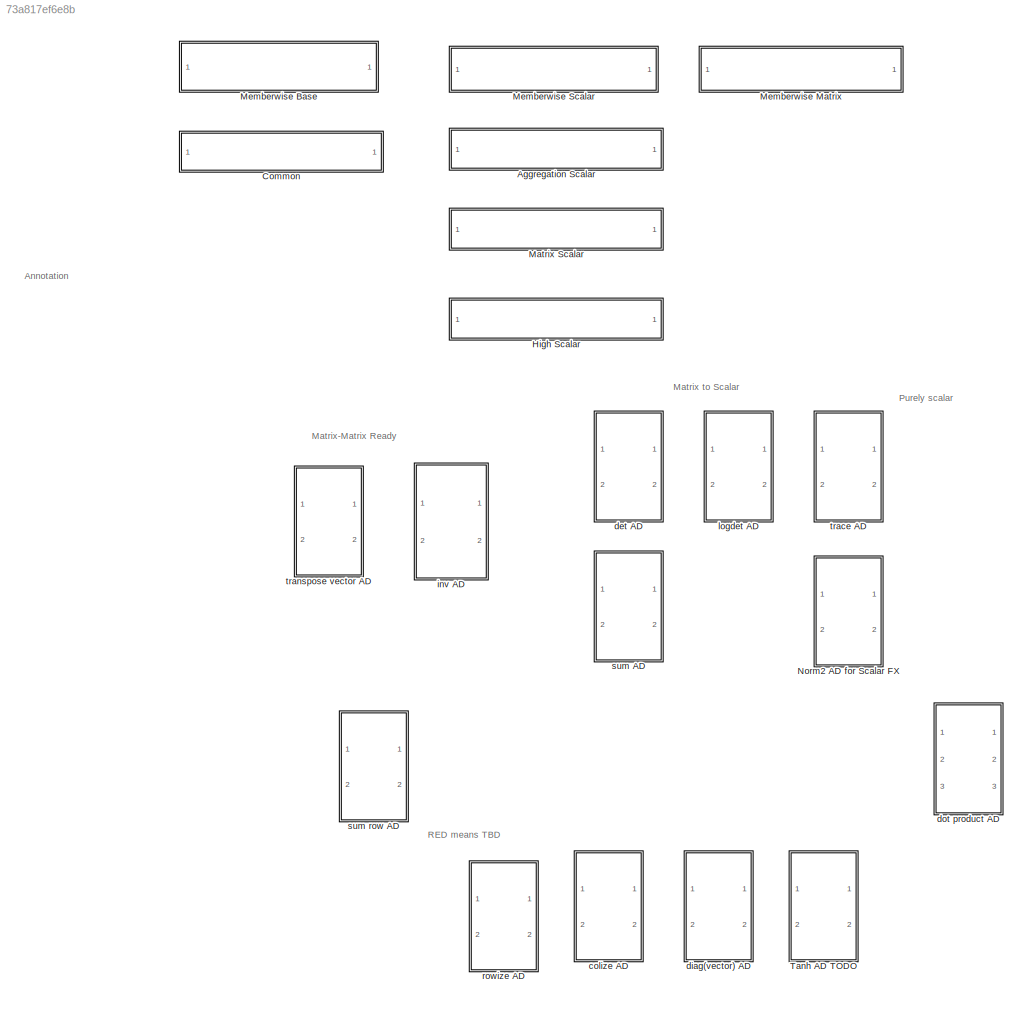
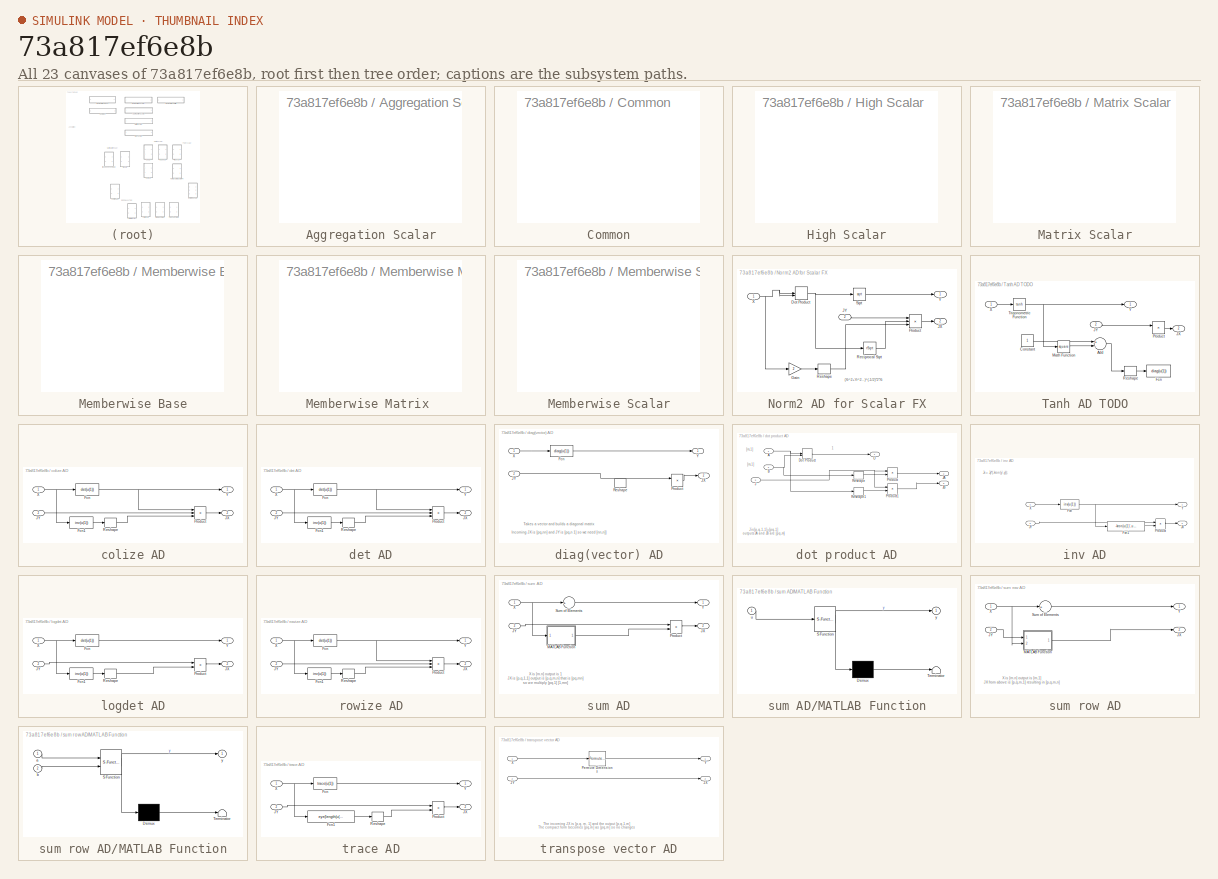
[diagram: thumbnail index - all 23 canvases of the model, root first then tree order]
MODEL slx_73a817ef6e8b
KIND library
CONFIG AbsTol = auto
CONFIG EnableMultiTasking = on
CONFIG FixedStep = auto
CONFIG MaxStep = auto
CONFIG MinStep = auto
CONFIG RelTol = 1e-3
CONFIG SampleTimeConstraint = Unconstrained
CONFIG Solver = ode45
CONFIG SolverName = ode45
CONFIG StartTime = 0.0
CONFIG StopTime = 10.0
BLOCK [SubSystem] Aggregation Scalar
  OpenFcn = ad_agg_scalar
  Ports = []
  RequestExecContextInheritance = off
  Variant = off
BLOCK [SubSystem] Common
  OpenFcn = ad_common
  Ports = []
  RequestExecContextInheritance = off
  Variant = off
BLOCK [SubSystem] High Scalar
  OpenFcn = ad_high_scalar
  Ports = []
  RequestExecContextInheritance = off
  Variant = off
BLOCK [SubSystem] Matrix Scalar
  OpenFcn = ad_mtx_scalar
  Ports = []
  RequestExecContextInheritance = off
  Variant = off
BLOCK [SubSystem] Memberwise Base
  OpenFcn = ad_mem_base
  Ports = []
  RequestExecContextInheritance = off
  Variant = off
BLOCK [SubSystem] Memberwise Matrix 
  OpenFcn = ad_mem_any
  Ports = []
  RequestExecContextInheritance = off
  Variant = off
BLOCK [SubSystem] Memberwise Scalar
  OpenFcn = ad_mem_scalar
  Ports = []
  RequestExecContextInheritance = off
  Variant = off
BLOCK [SubSystem] Norm2 AD for Scalar FX
  Ports = [2, 2]
  RequestExecContextInheritance = off
  Variant = off
BLOCK [DotProduct] Norm2 AD for Scalar FX/Dot Product
  OutDataTypeStr = Inherit: Inherit via internal rule
BLOCK [Gain] Norm2 AD for Scalar FX/Gain
  Gain = 2
  OutDataTypeStr = Inherit: Inherit via internal rule
  ParamDataTypeStr = Inherit: Inherit via internal rule
  SaturateOnIntegerOverflow = off
BLOCK [Outport] Norm2 AD for Scalar FX/JX
  IconDisplay = Port number
  Port = 2
BLOCK [Inport] Norm2 AD for Scalar FX/JY
  IconDisplay = Port number
  Port = 2
BLOCK [Product] Norm2 AD for Scalar FX/Product
  InputSameDT = off
  Inputs = 3
  OutDataTypeStr = Inherit: Inherit via internal rule
  Ports = [3, 1]
  RndMeth = Floor
  SaturateOnIntegerOverflow = off
BLOCK [Sqrt] Norm2 AD for Scalar FX/Reciprocal Sqrt
  Operator = rSqrt
BLOCK [Reshape] Norm2 AD for Scalar FX/Reshape
  OutputDimensionality = Row vector (2-D)
  Ports = [1, 1]
BLOCK [Sqrt] Norm2 AD for Scalar FX/Sqrt
BLOCK [Inport] Norm2 AD for Scalar FX/X
  IconDisplay = Port number
BLOCK [Outport] Norm2 AD for Scalar FX/Y
  IconDisplay = Port number
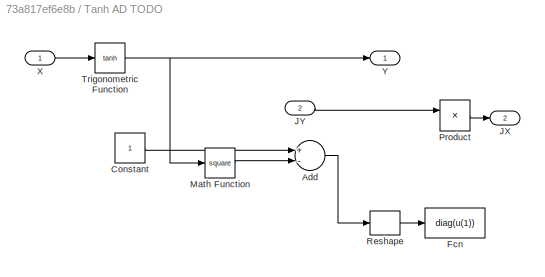
BLOCK [SubSystem] Tanh AD TODO
  Ports = [2, 2]
  RequestExecContextInheritance = off
  Variant = off
BLOCK [Sum] Tanh AD TODO/Add
  InputSameDT = off
  Inputs = +-
  OutDataTypeStr = Inherit: Inherit via internal rule
  Ports = [2, 1]
  SaturateOnIntegerOverflow = off
BLOCK [Constant] Tanh AD TODO/Constant
BLOCK [Fcn] Tanh AD TODO/Fcn
  Expr = diag(u(1))
BLOCK [Outport] Tanh AD TODO/JX
  IconDisplay = Port number
  Port = 2
BLOCK [Inport] Tanh AD TODO/JY
  IconDisplay = Port number
  Port = 2
BLOCK [Math] Tanh AD TODO/Math Function
  Operator = square
  Ports = [1, 1]
BLOCK [Product] Tanh AD TODO/Product
  InputSameDT = off
  OutDataTypeStr = Inherit: Inherit via internal rule
  Ports = [2, 1]
  RndMeth = Floor
  SaturateOnIntegerOverflow = off
BLOCK [Reshape] Tanh AD TODO/Reshape
  OutputDimensionality = Column vector (2-D)
  Ports = [1, 1]
BLOCK [Trigonometry] Tanh AD TODO/Trigonometric Function
  Operator = tanh
  Ports = [1, 1]
BLOCK [Inport] Tanh AD TODO/X
  IconDisplay = Port number
BLOCK [Outport] Tanh AD TODO/Y
  IconDisplay = Port number
BLOCK [SubSystem] colize AD
  Ports = [2, 2]
  RequestExecContextInheritance = off
  Variant = off
BLOCK [Fcn] colize AD/Fcn
  Expr = det(u(1))
BLOCK [Fcn] colize AD/Fcn1
  Expr = inv(u(1))
BLOCK [Outport] colize AD/JX
  IconDisplay = Port number
  Port = 2
BLOCK [Inport] colize AD/JY
  IconDisplay = Port number
  Port = 2
BLOCK [Product] colize AD/Product
  InputSameDT = off
  Inputs = 3
  OutDataTypeStr = Inherit: Inherit via internal rule
  Ports = [3, 1]
  RndMeth = Floor
  SaturateOnIntegerOverflow = off
BLOCK [Reshape] colize AD/Reshape
  OutputDimensionality = Row vector (2-D)
  Ports = [1, 1]
BLOCK [Inport] colize AD/X
  IconDisplay = Port number
BLOCK [Outport] colize AD/Y
  IconDisplay = Port number
BLOCK [SubSystem] det AD
  Ports = [2, 2]
  RequestExecContextInheritance = off
  Variant = off
BLOCK [Fcn] det AD/Fcn
  Expr = det(u(1))
BLOCK [Fcn] det AD/Fcn1
  Expr = inv(u(1))
BLOCK [Outport] det AD/JX
  IconDisplay = Port number
  Port = 2
BLOCK [Inport] det AD/JY
  IconDisplay = Port number
  Port = 2
BLOCK [Product] det AD/Product
  InputSameDT = off
  Inputs = 3
  OutDataTypeStr = Inherit: Inherit via internal rule
  Ports = [3, 1]
  RndMeth = Floor
  SaturateOnIntegerOverflow = off
BLOCK [Reshape] det AD/Reshape
  OutputDimensionality = Row vector (2-D)
  Ports = [1, 1]
BLOCK [Inport] det AD/X
  IconDisplay = Port number
BLOCK [Outport] det AD/Y
  IconDisplay = Port number
BLOCK [SubSystem] diag(vector) AD
  Ports = [2, 2]
  RequestExecContextInheritance = off
  Variant = off
BLOCK [Fcn] diag(vector) AD/Fcn
  Expr = diag(u(1))
BLOCK [Outport] diag(vector) AD/JX
  IconDisplay = Port number
  Port = 2
BLOCK [Inport] diag(vector) AD/JY
  IconDisplay = Port number
  Port = 2
BLOCK [Product] diag(vector) AD/Product
  InputSameDT = off
  OutDataTypeStr = Inherit: Inherit via internal rule
  Ports = [2, 1]
  RndMeth = Floor
  SaturateOnIntegerOverflow = off
BLOCK [Reshape] diag(vector) AD/Reshape
  OutputDimensionality = Row vector (2-D)
  Ports = [1, 1]
BLOCK [Inport] diag(vector) AD/X
  IconDisplay = Port number
BLOCK [Outport] diag(vector) AD/Y
  IconDisplay = Port number
BLOCK [SubSystem] dot product AD
  Ports = [3, 3]
  RequestExecContextInheritance = off
  Variant = off
BLOCK [Inport] dot product AD/A
  IconDisplay = Port number
BLOCK [Inport] dot product AD/B
  IconDisplay = Port number
  Port = 2
BLOCK [DotProduct] dot product AD/Dot Product
  OutDataTypeStr = Inherit: Inherit via internal rule
BLOCK [Inport] dot product AD/J
  IconDisplay = Port number
  Port = 3
BLOCK [Outport] dot product AD/JA
  IconDisplay = Port number
  Port = 2
BLOCK [Outport] dot product AD/JB
  IconDisplay = Port number
  Port = 3
BLOCK [Outport] dot product AD/O
  IconDisplay = Port number
BLOCK [Product] dot product AD/Product
  InputSameDT = off
  OutDataTypeStr = Inherit: Inherit via internal rule
  Ports = [2, 1]
  RndMeth = Floor
  SaturateOnIntegerOverflow = off
BLOCK [Product] dot product AD/Product1
  InputSameDT = off
  OutDataTypeStr = Inherit: Inherit via internal rule
  Ports = [2, 1]
  RndMeth = Floor
  SaturateOnIntegerOverflow = off
BLOCK [Reshape] dot product AD/Reshape
  OutputDimensionality = Row vector (2-D)
  Ports = [1, 1]
BLOCK [Reshape] dot product AD/Reshape1
  OutputDimensionality = Row vector (2-D)
  Ports = [1, 1]
BLOCK [SubSystem] inv AD
  Ports = [2, 2]
  RequestExecContextInheritance = off
  Variant = off
BLOCK [Fcn] inv AD/Fcn
  Expr = inv(u(1))
BLOCK [Fcn] inv AD/Fcn1
  Expr = -kron(u(1)',u(1))
BLOCK [Outport] inv AD/JX
  IconDisplay = Port number
  Port = 2
BLOCK [Inport] inv AD/JY
  IconDisplay = Port number
  Port = 2
BLOCK [Product] inv AD/Product
  InputSameDT = off
  OutDataTypeStr = Inherit: Inherit via internal rule
  Ports = [2, 1]
  RndMeth = Floor
  SaturateOnIntegerOverflow = off
BLOCK [Inport] inv AD/X
  IconDisplay = Port number
BLOCK [Outport] inv AD/Y
  IconDisplay = Port number
BLOCK [SubSystem] logdet AD
  Ports = [2, 2]
  RequestExecContextInheritance = off
  Variant = off
BLOCK [Fcn] logdet AD/Fcn
  Expr = det(u(1))
BLOCK [Fcn] logdet AD/Fcn1
  Expr = inv(u(1))
BLOCK [Outport] logdet AD/JX
  IconDisplay = Port number
  Port = 2
BLOCK [Inport] logdet AD/JY
  IconDisplay = Port number
  Port = 2
BLOCK [Product] logdet AD/Product
  InputSameDT = off
  OutDataTypeStr = Inherit: Inherit via internal rule
  Ports = [2, 1]
  RndMeth = Floor
  SaturateOnIntegerOverflow = off
BLOCK [Reshape] logdet AD/Reshape
  OutputDimensionality = Row vector (2-D)
  Ports = [1, 1]
BLOCK [Inport] logdet AD/X
  IconDisplay = Port number
BLOCK [Outport] logdet AD/Y
  IconDisplay = Port number
BLOCK [SubSystem] rowize AD
  Ports = [2, 2]
  RequestExecContextInheritance = off
  Variant = off
BLOCK [Fcn] rowize AD/Fcn
  Expr = det(u(1))
BLOCK [Fcn] rowize AD/Fcn1
  Expr = inv(u(1))
BLOCK [Outport] rowize AD/JX
  IconDisplay = Port number
  Port = 2
BLOCK [Inport] rowize AD/JY
  IconDisplay = Port number
  Port = 2
BLOCK [Product] rowize AD/Product
  InputSameDT = off
  Inputs = 3
  OutDataTypeStr = Inherit: Inherit via internal rule
  Ports = [3, 1]
  RndMeth = Floor
  SaturateOnIntegerOverflow = off
BLOCK [Reshape] rowize AD/Reshape
  OutputDimensionality = Row vector (2-D)
  Ports = [1, 1]
BLOCK [Inport] rowize AD/X
  IconDisplay = Port number
BLOCK [Outport] rowize AD/Y
  IconDisplay = Port number
BLOCK [SubSystem] sum AD
  Ports = [2, 2]
  RequestExecContextInheritance = off
  Variant = off
BLOCK [Outport] sum AD/JX
  IconDisplay = Port number
  Port = 2
BLOCK [Inport] sum AD/JY
  IconDisplay = Port number
  Port = 2
BLOCK [SubSystem] sum AD/MATLAB Function
  ErrorFcn = Stateflow.Translate.translate
  PermitHierarchicalResolution = ExplicitOnly
  Ports = [1, 1]
  RequestExecContextInheritance = off
  SFBlockType = MATLAB Function
  TreatAsAtomicUnit = on
  Variant = off
BLOCK [Demux] sum AD/MATLAB Function/ Demux 
  Outputs = 1
  Ports = [1, 1]
BLOCK [S-Function] sum AD/MATLAB Function/ SFunction 
  EnableBusSupport = off
  FunctionName = sf_sfun
  PortCounts = [1 2]
  Ports = [1, 2]
  SFcnIsStateOwnerBlock = off
  SFunctionDeploymentMode = off
  Tag = Stateflow S-Function autodiff 5
BLOCK [Terminator] sum AD/MATLAB Function/ Terminator 
BLOCK [Inport] sum AD/MATLAB Function/u
  IconDisplay = Port number
BLOCK [Outport] sum AD/MATLAB Function/y
  IconDisplay = Port number
BLOCK [Product] sum AD/Product
  InputSameDT = off
  OutDataTypeStr = Inherit: Inherit via internal rule
  Ports = [2, 1]
  RndMeth = Floor
  SaturateOnIntegerOverflow = off
BLOCK [Sum] sum AD/Sum of Elements
  InputSameDT = off
  Inputs = +
  OutDataTypeStr = Inherit: Inherit via internal rule
  Ports = [1, 1]
  SaturateOnIntegerOverflow = off
BLOCK [Inport] sum AD/X
  IconDisplay = Port number
BLOCK [Outport] sum AD/Y
  IconDisplay = Port number
BLOCK [SubSystem] sum row AD
  Ports = [2, 2]
  RequestExecContextInheritance = off
  Variant = off
BLOCK [Outport] sum row AD/JX
  IconDisplay = Port number
  Port = 2
BLOCK [Inport] sum row AD/JY
  IconDisplay = Port number
  Port = 2
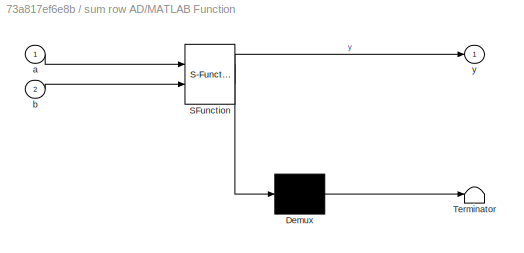
BLOCK [SubSystem] sum row AD/MATLAB Function
  ErrorFcn = Stateflow.Translate.translate
  PermitHierarchicalResolution = ExplicitOnly
  Ports = [2, 1]
  RequestExecContextInheritance = off
  SFBlockType = MATLAB Function
  TreatAsAtomicUnit = on
  Variant = off
BLOCK [Demux] sum row AD/MATLAB Function/ Demux 
  Outputs = 1
  Ports = [1, 1]
BLOCK [S-Function] sum row AD/MATLAB Function/ SFunction 
  EnableBusSupport = off
  FunctionName = sf_sfun
  PortCounts = [2 2]
  Ports = [2, 2]
  SFcnIsStateOwnerBlock = off
  SFunctionDeploymentMode = off
  Tag = Stateflow S-Function autodiff 9
BLOCK [Terminator] sum row AD/MATLAB Function/ Terminator 
BLOCK [Inport] sum row AD/MATLAB Function/a
  IconDisplay = Port number
BLOCK [Inport] sum row AD/MATLAB Function/b
  IconDisplay = Port number
  Port = 2
BLOCK [Outport] sum row AD/MATLAB Function/y
  IconDisplay = Port number
BLOCK [Sum] sum row AD/Sum of Elements
  CollapseDim = 2
  CollapseMode = Specified dimension
  InputSameDT = off
  Inputs = +
  OutDataTypeStr = Inherit: Inherit via internal rule
  Ports = [1, 1]
  SaturateOnIntegerOverflow = off
BLOCK [Inport] sum row AD/X
  IconDisplay = Port number
BLOCK [Outport] sum row AD/Y
  IconDisplay = Port number
BLOCK [SubSystem] trace AD
  Ports = [2, 2]
  RequestExecContextInheritance = off
  Variant = off
BLOCK [Fcn] trace AD/Fcn
  Expr = trace(u(1))
BLOCK [Fcn] trace AD/Fcn1
  Expr = eye(length(u(1)))
BLOCK [Outport] trace AD/JX
  IconDisplay = Port number
  Port = 2
BLOCK [Inport] trace AD/JY
  IconDisplay = Port number
  Port = 2
BLOCK [Product] trace AD/Product
  InputSameDT = off
  OutDataTypeStr = Inherit: Inherit via internal rule
  Ports = [2, 1]
  RndMeth = Floor
  SaturateOnIntegerOverflow = off
BLOCK [Reshape] trace AD/Reshape
  OutputDimensionality = Row vector (2-D)
  Ports = [1, 1]
BLOCK [Inport] trace AD/X
  IconDisplay = Port number
BLOCK [Outport] trace AD/Y
  IconDisplay = Port number
BLOCK [SubSystem] transpose vector AD
  Ports = [2, 2]
  RequestExecContextInheritance = off
  Variant = off
BLOCK [Outport] transpose vector AD/JX
  IconDisplay = Port number
  Port = 2
BLOCK [Inport] transpose vector AD/JY
  IconDisplay = Port number
  Port = 2
BLOCK [PermuteDimensions] transpose vector AD/Permute Dimensions
BLOCK [Inport] transpose vector AD/X
  IconDisplay = Port number
BLOCK [Outport] transpose vector AD/Y
  IconDisplay = Port number
ANNOTATION (root): Annotation
ANNOTATION (root): Matrix to Scalar
ANNOTATION (root): Matrix-Matrix Ready
ANNOTATION (root): Purely scalar
ANNOTATION (root): RED means TBD
ANNOTATION Norm2 AD for Scalar FX: (Xi^2+Yi^2...)^(-1/2)*2*Xi
ANNOTATION diag(vector) AD: Takes a vector and builds a diagonal matrix Incoming JX is [pq,nn] and JY is [pq,n 1] so we need [nn,n]]
ANNOTATION dot product AD: 1
ANNOTATION dot product AD: J is [p,q,1,1]=[pq,1] outputs JA and JB are [pq,m]
ANNOTATION dot product AD: [m,1]
ANNOTATION inv AD: Jx = Jy*(-kron(y',y));
ANNOTATION sum AD: X is [m.n] output is 1 JX is [p,q,1,1] output is [p,q,m,n] that is [pq,mn] so we multiply [pq,1] [1,mn]
ANNOTATION sum row AD: X is [m.n] output is [m,1] JX from above is [p,q,m,1] resulting in [p,q,m,n]
ANNOTATION transpose vector AD: The incoming JX is [p,q, m, 1] and the output [p,q,1,m] The compact form becomes [pq,m] as [pq,m] so no changes
NET Norm2 AD for Scalar FX/Dot Product:1 -> Norm2 AD for Scalar FX/Reciprocal Sqrt:1, Norm2 AD for Scalar FX/Sqrt:1
LINE Norm2 AD for Scalar FX/Gain:1 -> Norm2 AD for Scalar FX/Reshape:1
LINE Norm2 AD for Scalar FX/JY:1 -> Norm2 AD for Scalar FX/Product:1
LINE Norm2 AD for Scalar FX/Product:1 -> Norm2 AD for Scalar FX/JX:1
LINE Norm2 AD for Scalar FX/Reciprocal Sqrt:1 -> Norm2 AD for Scalar FX/Product:2
LINE Norm2 AD for Scalar FX/Reshape:1 -> Norm2 AD for Scalar FX/Product:3
LINE Norm2 AD for Scalar FX/Sqrt:1 -> Norm2 AD for Scalar FX/Y:1
NET Norm2 AD for Scalar FX/X:1 -> Norm2 AD for Scalar FX/Dot Product:1, Norm2 AD for Scalar FX/Dot Product:2, Norm2 AD for Scalar FX/Gain:1
LINE Tanh AD TODO/Add:1 -> Tanh AD TODO/Reshape:1
LINE Tanh AD TODO/Constant:1 -> Tanh AD TODO/Add:1
LINE Tanh AD TODO/JY:1 -> Tanh AD TODO/Product:1
LINE Tanh AD TODO/Math Function:1 -> Tanh AD TODO/Add:2
LINE Tanh AD TODO/Product:1 -> Tanh AD TODO/JX:1
LINE Tanh AD TODO/Reshape:1 -> Tanh AD TODO/Fcn:1
NET Tanh AD TODO/Trigonometric Function:1 -> Tanh AD TODO/Math Function:1, Tanh AD TODO/Y:1
LINE Tanh AD TODO/X:1 -> Tanh AD TODO/Trigonometric Function:1
LINE colize AD/Fcn1:1 -> colize AD/Reshape:1
NET colize AD/Fcn:1 -> colize AD/Product:1, colize AD/Y:1
LINE colize AD/JY:1 -> colize AD/Product:2
LINE colize AD/Product:1 -> colize AD/JX:1
LINE colize AD/Reshape:1 -> colize AD/Product:3
NET colize AD/X:1 -> colize AD/Fcn1:1, colize AD/Fcn:1
LINE det AD/Fcn1:1 -> det AD/Reshape:1
NET det AD/Fcn:1 -> det AD/Product:1, det AD/Y:1
LINE det AD/JY:1 -> det AD/Product:2
LINE det AD/Product:1 -> det AD/JX:1
LINE det AD/Reshape:1 -> det AD/Product:3
NET det AD/X:1 -> det AD/Fcn1:1, det AD/Fcn:1
LINE diag(vector) AD/Fcn:1 -> diag(vector) AD/Y:1
LINE diag(vector) AD/JY:1 -> diag(vector) AD/Product:1
LINE diag(vector) AD/Product:1 -> diag(vector) AD/JX:1
LINE diag(vector) AD/X:1 -> diag(vector) AD/Fcn:1
NET dot product AD/A:1 -> dot product AD/Dot Product:1, dot product AD/Reshape1:1
NET dot product AD/B:1 -> dot product AD/Dot Product:2, dot product AD/Reshape:1
LINE dot product AD/Dot Product:1 -> dot product AD/O:1
NET dot product AD/J:1 -> dot product AD/Product1:1, dot product AD/Product:1
LINE dot product AD/Product1:1 -> dot product AD/JB:1
LINE dot product AD/Product:1 -> dot product AD/JA:1
LINE dot product AD/Reshape1:1 -> dot product AD/Product1:2
LINE dot product AD/Reshape:1 -> dot product AD/Product:2
LINE inv AD/Fcn1:1 -> inv AD/Product:2
NET inv AD/Fcn:1 -> inv AD/Fcn1:1, inv AD/Y:1
LINE inv AD/JY:1 -> inv AD/Product:1
LINE inv AD/Product:1 -> inv AD/JX:1
LINE inv AD/X:1 -> inv AD/Fcn:1
LINE logdet AD/Fcn1:1 -> logdet AD/Reshape:1
LINE logdet AD/Fcn:1 -> logdet AD/Y:1
LINE logdet AD/JY:1 -> logdet AD/Product:1
LINE logdet AD/Product:1 -> logdet AD/JX:1
LINE logdet AD/Reshape:1 -> logdet AD/Product:2
NET logdet AD/X:1 -> logdet AD/Fcn1:1, logdet AD/Fcn:1
LINE rowize AD/Fcn1:1 -> rowize AD/Reshape:1
NET rowize AD/Fcn:1 -> rowize AD/Product:1, rowize AD/Y:1
LINE rowize AD/JY:1 -> rowize AD/Product:2
LINE rowize AD/Product:1 -> rowize AD/JX:1
LINE rowize AD/Reshape:1 -> rowize AD/Product:3
NET rowize AD/X:1 -> rowize AD/Fcn1:1, rowize AD/Fcn:1
LINE sum AD/JY:1 -> sum AD/Product:1
LINE sum AD/MATLAB Function:1 -> sum AD/Product:2
LINE sum AD/Product:1 -> sum AD/JX:1
LINE sum AD/Sum of Elements:1 -> sum AD/Y:1
NET sum AD/X:1 -> sum AD/MATLAB Function:1, sum AD/Sum of Elements:1
LINE sum row AD/JY:1 -> sum row AD/MATLAB Function:1
LINE sum row AD/MATLAB Function:1 -> sum row AD/JX:1
LINE sum row AD/Sum of Elements:1 -> sum row AD/Y:1
NET sum row AD/X:1 -> sum row AD/MATLAB Function:2, sum row AD/Sum of Elements:1
LINE trace AD/Fcn1:1 -> trace AD/Reshape:1
LINE trace AD/Fcn:1 -> trace AD/Y:1
LINE trace AD/JY:1 -> trace AD/Product:1
LINE trace AD/Product:1 -> trace AD/JX:1
LINE trace AD/Reshape:1 -> trace AD/Product:2
NET trace AD/X:1 -> trace AD/Fcn1:1, trace AD/Fcn:1
LINE transpose vector AD/JY:1 -> transpose vector AD/JX:1
LINE transpose vector AD/Permute Dimensions:1 -> transpose vector AD/Y:1
LINE transpose vector AD/X:1 -> transpose vector AD/Permute Dimensions:1
note: NET lines group one-source signal fan-out (src -> all destinations, sorted); 1:1 wires keep LINE
CHART sum AD/MATLAB Function states=1 transitions=1
  STATE_LABEL 'eML_blk_kernel()'
  STATE_LABEL 'SCRIPT:\nfunction y = fcn(u)\n\ny = ones(1,length(u));\n'
CHART sum row AD/MATLAB Function states=1 transitions=1
  STATE_LABEL 'eML_blk_kernel()'
  STATE_LABEL 'SCRIPT:\nfunction y = fcn(a,b)\n%#codegen\n\ny = repmat(a,1,size(b,2));'
